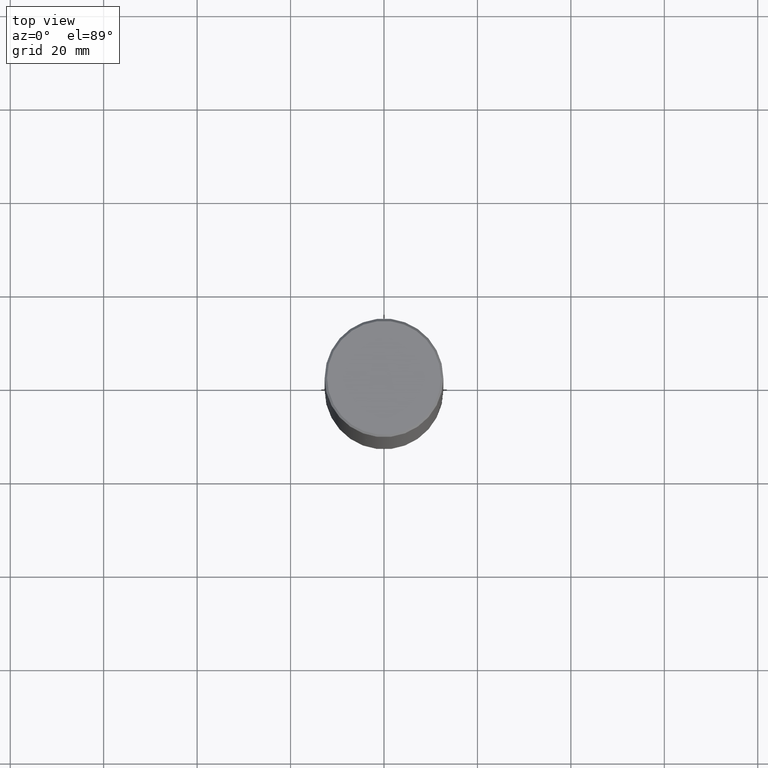
[diagram: clean part render]
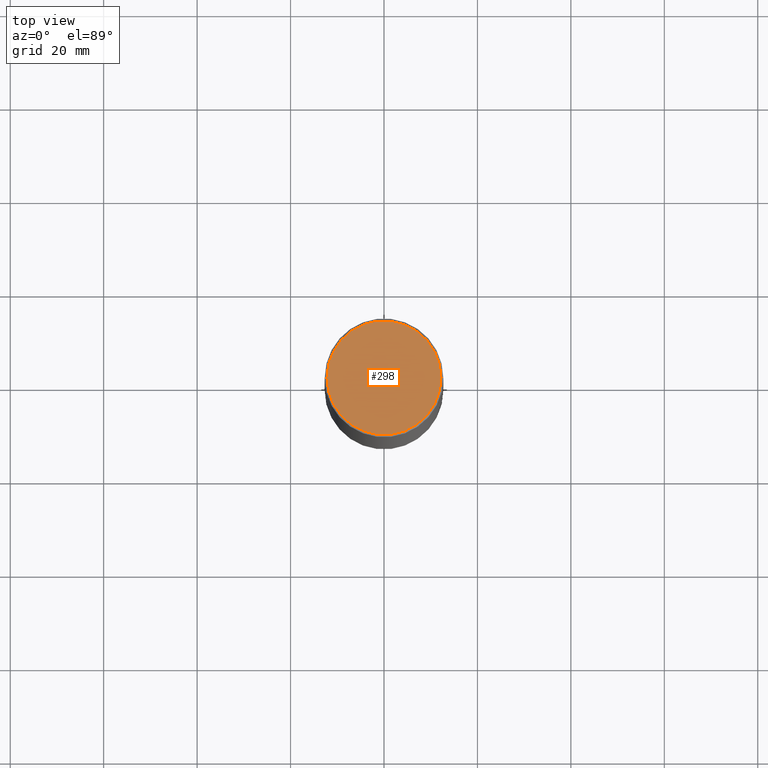
[diagram: same view with one face highlighted and labeled with its STEP entity id]
A machine part, top view. The second image highlights one B-rep face of the part: STEP entity #298.
In plain terms, the highlighted planar face has unit normal (0, -0, -1).
Its self-contained STEP definition (entity closure, byte-faithful):
#43 = DIRECTION ( 'NONE',  ( -2.445468806185136597E-29, 3.491481338843145583E-15, 1.000000000000000000 ) ) ;
#96 = CARTESIAN_POINT ( 'NONE',  ( 3.351822085289400054E-15, 0.4799999999999989275, -1.669508273909555500E-15 ) ) ;
#106 = ORIENTED_EDGE ( 'NONE', *, *, #414, .T. ) ;
#110 = CIRCLE ( 'NONE', #125, 0.4799999999999989275 ) ;
#125 = AXIS2_PLACEMENT_3D ( 'NONE', #332, #490, #218 ) ;
#193 = EDGE_LOOP ( 'NONE', ( #106, #319 ) ) ;
#218 = DIRECTION ( 'NONE',  ( 1.000000000000000000, -6.982962677686266711E-15, 4.876036955247140054E-29 ) ) ;
#243 = CARTESIAN_POINT ( 'NONE',  ( -0.4799999999999989275, 3.386736898677831703E-15, 1.280553747027767124E-17 ) ) ;
#250 = VERTEX_POINT ( 'NONE', #243 ) ;
#263 = AXIS2_PLACEMENT_3D ( 'NONE', #426, #43, #402 ) ;
#277 = DIRECTION ( 'NONE',  ( -1.000000000000000000, 6.982962677686265922E-15, -4.876176775795935793E-29 ) ) ;
#285 = PLANE ( 'NONE',  #346 ) ;
#298 = ADVANCED_FACE ( 'NONE', ( #395 ), #285, .F. ) ;
#319 = ORIENTED_EDGE ( 'NONE', *, *, #337, .T. ) ;
#332 = CARTESIAN_POINT ( 'NONE',  ( -3.131554243005659264E-46, 4.471029511141341874E-32, 1.280553747030123384E-17 ) ) ;
#337 = EDGE_CURVE ( 'NONE', #348, #250, #406, .T. ) ;
#346 = AXIS2_PLACEMENT_3D ( 'NONE', #96, #361, #277 ) ;
#348 = VERTEX_POINT ( 'NONE', #359 ) ;
#359 = CARTESIAN_POINT ( 'NONE',  ( 0.4799999999999989275, -3.396558832296475394E-15, 1.280553747032483033E-17 ) ) ;
#361 = DIRECTION ( 'NONE',  ( 2.438088387897960049E-29, -3.491481338843145188E-15, -1.000000000000000000 ) ) ;
#395 = FACE_OUTER_BOUND ( 'NONE', #193, .T. ) ;
#402 = DIRECTION ( 'NONE',  ( 1.000000000000000000, -6.982962677686266711E-15, 4.876036955247140054E-29 ) ) ;
#406 = CIRCLE ( 'NONE', #263, 0.4799999999999989275 ) ;
#414 = EDGE_CURVE ( 'NONE', #250, #348, #110, .T. ) ;
#426 = CARTESIAN_POINT ( 'NONE',  ( -3.131554243005659264E-46, 4.471029511141341874E-32, 1.280553747030123384E-17 ) ) ;
#490 = DIRECTION ( 'NONE',  ( -2.445468806185136597E-29, 3.491481338843145583E-15, 1.000000000000000000 ) ) ;